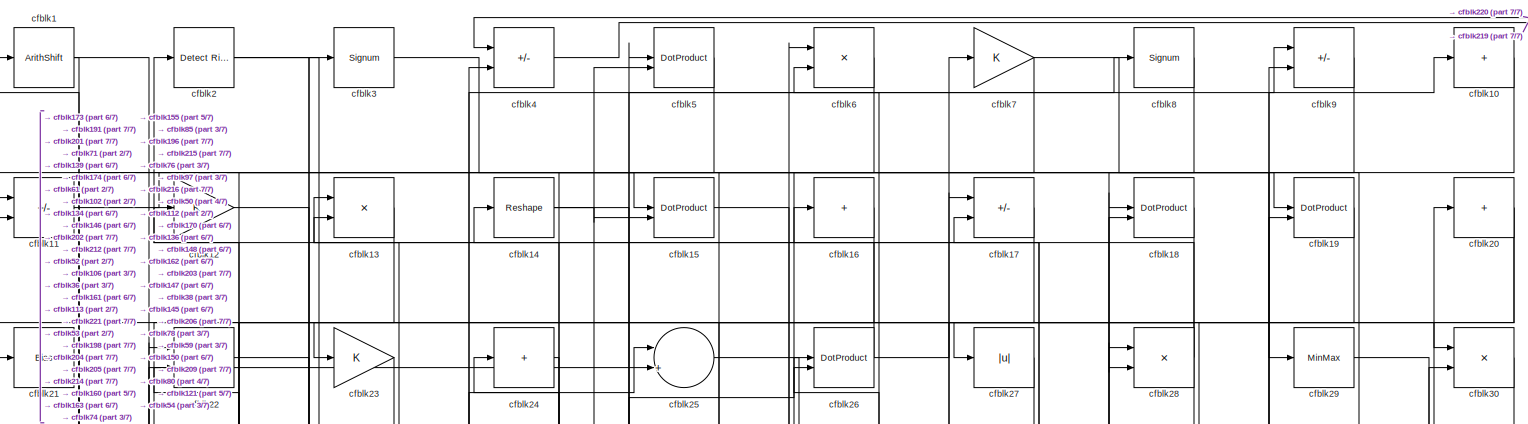
[diagram: root canvas - part 1/7, full width, top band]
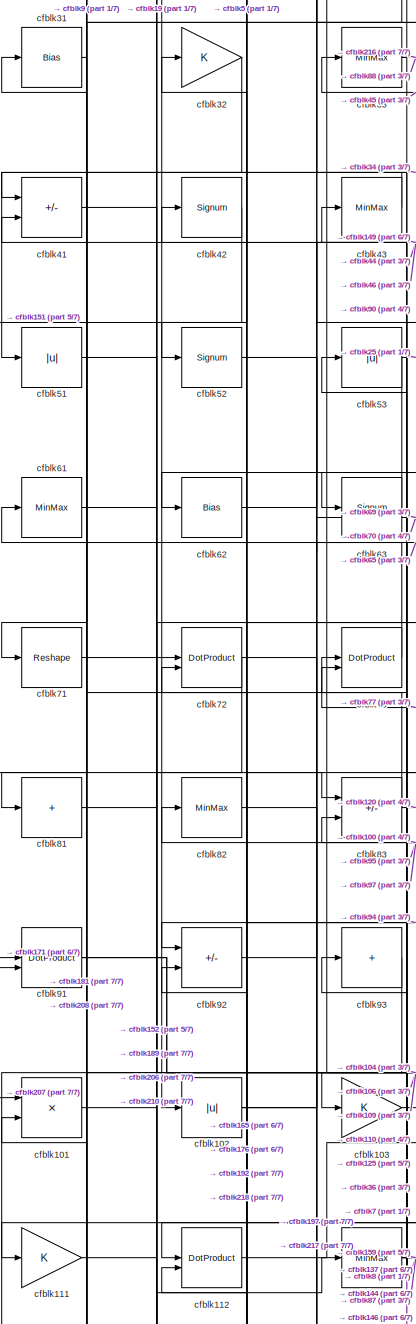
[diagram: root canvas - part 2/7, top left region]
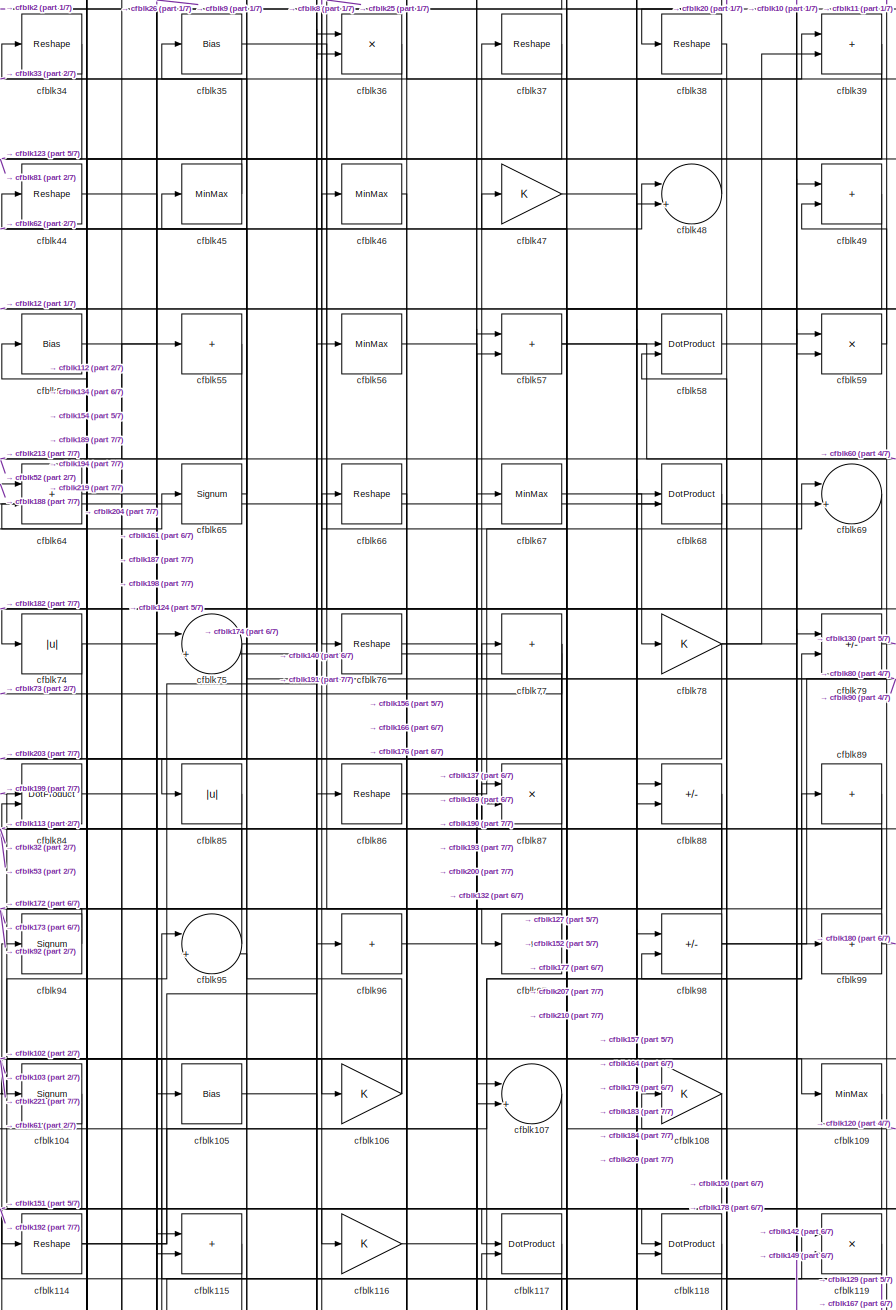
[diagram: root canvas - part 3/7, top center region]
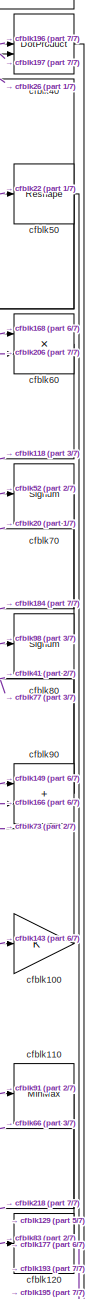
[diagram: root canvas - part 4/7, top right region]
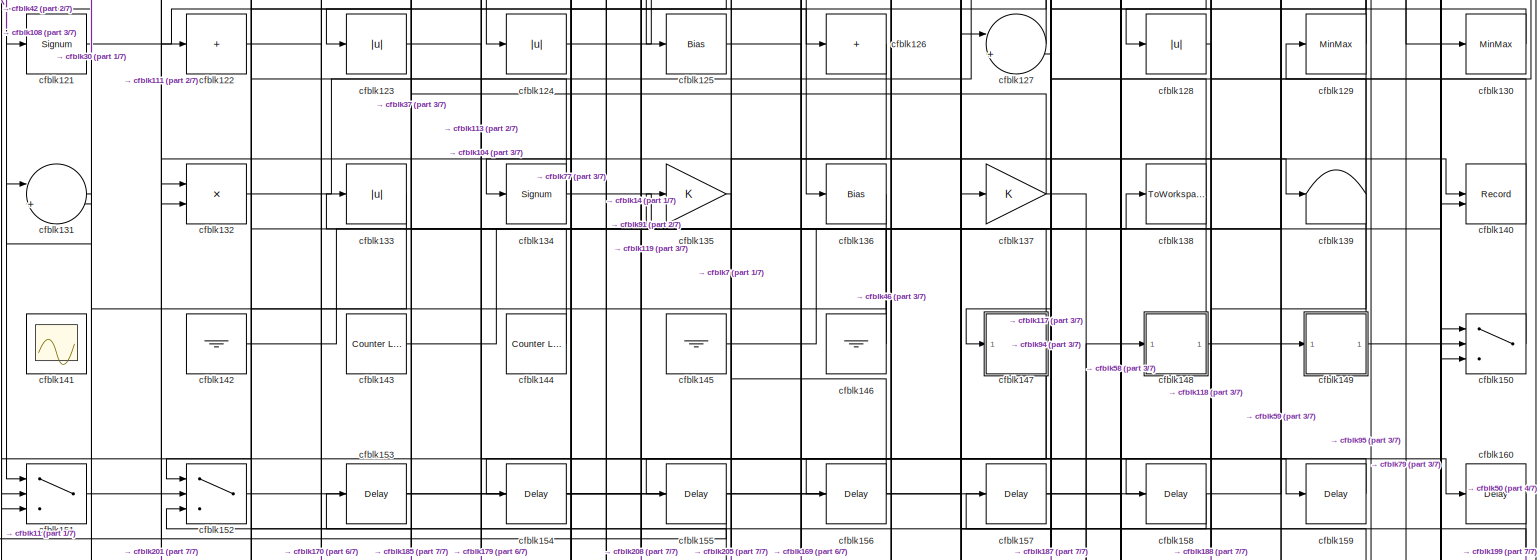
[diagram: root canvas - part 5/7, full width, middle band]
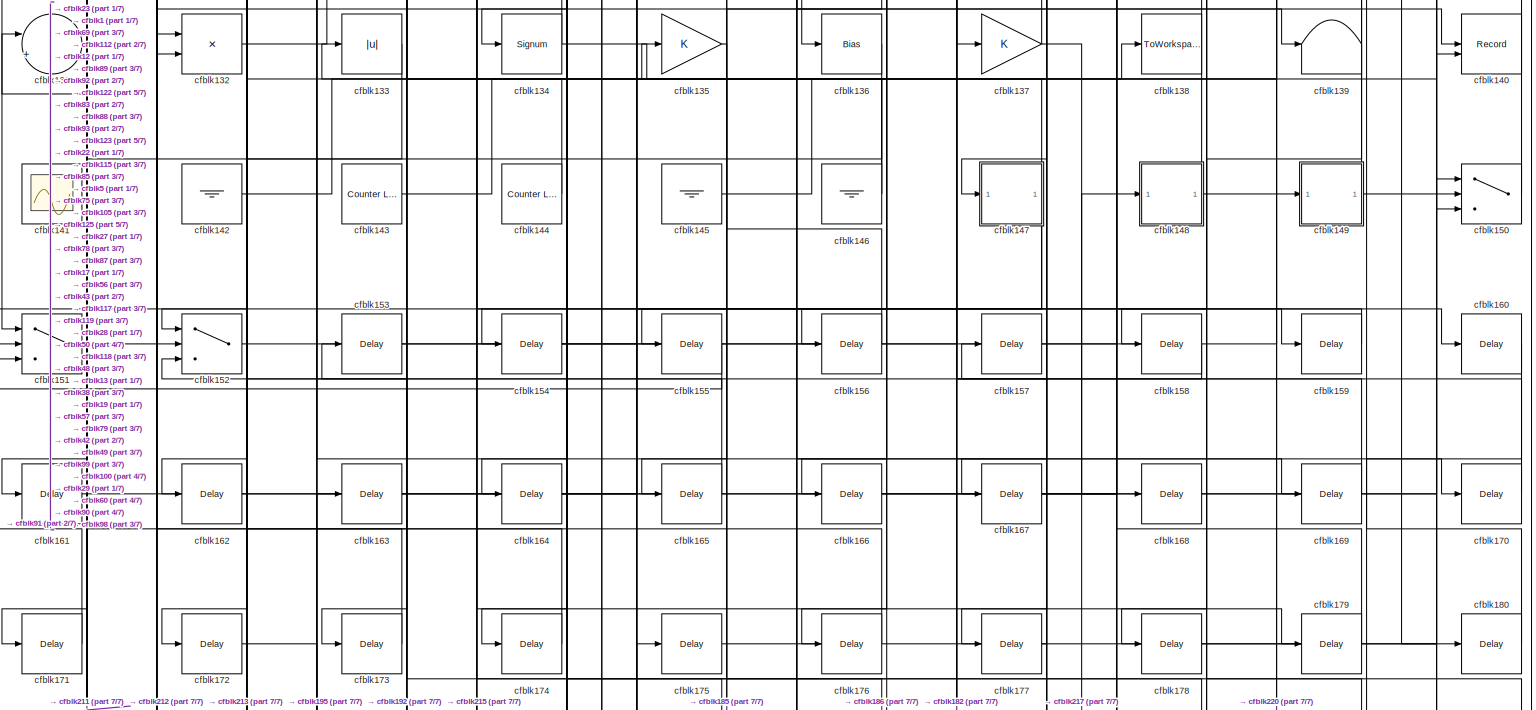
[diagram: root canvas - part 6/7, full width, bottom band]
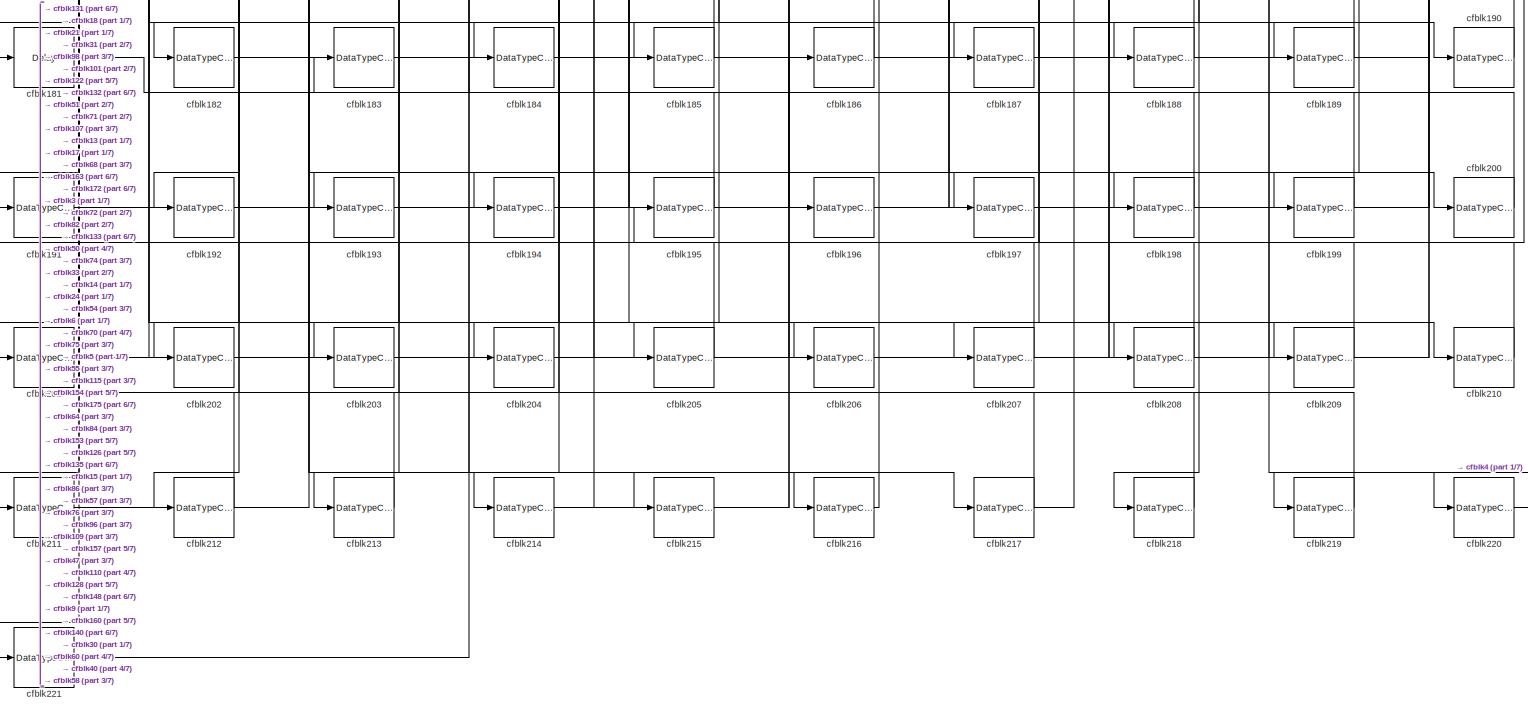
[diagram: root canvas - part 7/7, full width, bottom band]
MODEL slx_adb3fa89d6e9
KIND model
CONFIG AbsTol = auto
CONFIG EnableMultiTasking = off
CONFIG FixedStep = auto
CONFIG MaxStep = auto
CONFIG MinStep = auto
CONFIG RelTol = 1e-3
CONFIG SampleTimeConstraint = Unconstrained
CONFIG SolverName = VariableStepAuto
CONFIG StartTime = 0.0
CONFIG StopTime = 10.0
BLOCK [ArithShift] cfblk1
  BitShiftNumber = 8
  InputPortMap = u0
BLOCK [Sum] cfblk10
  IconShape = rectangular
  Inputs = +
BLOCK [Gain] cfblk100
BLOCK [Product] cfblk101
  Inputs = */
  RndMeth = Zero
  SaturateOnIntegerOverflow = on
BLOCK [Abs] cfblk102
  SaturateOnIntegerOverflow = off
BLOCK [Gain] cfblk103
BLOCK [Signum] cfblk104
BLOCK [Bias] cfblk105
  Bias = 0.0
  SaturateOnIntegerOverflow = off
BLOCK [Gain] cfblk106
BLOCK [Sum] cfblk107
  Inputs = |++
BLOCK [Gain] cfblk108
BLOCK [MinMax] cfblk109
BLOCK [Sum] cfblk11
  IconShape = rectangular
  Inputs = +-
BLOCK [MinMax] cfblk110
BLOCK [Gain] cfblk111
BLOCK [DotProduct] cfblk112
  OutDataTypeStr = Inherit: Inherit via internal rule
BLOCK [MinMax] cfblk113
BLOCK [Reshape] cfblk114
BLOCK [Sum] cfblk115
  IconShape = rectangular
BLOCK [Gain] cfblk116
BLOCK [DotProduct] cfblk117
  OutDataTypeStr = Inherit: Inherit via internal rule
BLOCK [DotProduct] cfblk118
  OutDataTypeStr = Inherit: Inherit via internal rule
BLOCK [Product] cfblk119
  Inputs = */
  RndMeth = Zero
  SaturateOnIntegerOverflow = on
BLOCK [Gain] cfblk12
BLOCK [Sum] cfblk120
  IconShape = rectangular
  Inputs = +
BLOCK [Signum] cfblk121
BLOCK [Sum] cfblk122
  IconShape = rectangular
  Inputs = +
BLOCK [Abs] cfblk123
  SaturateOnIntegerOverflow = off
BLOCK [Abs] cfblk124
  SaturateOnIntegerOverflow = off
BLOCK [Bias] cfblk125
  Bias = 0.0
  SaturateOnIntegerOverflow = off
BLOCK [Sum] cfblk126
  IconShape = rectangular
  Inputs = +
BLOCK [Sum] cfblk127
  Inputs = |++
BLOCK [Abs] cfblk128
  SaturateOnIntegerOverflow = off
BLOCK [MinMax] cfblk129
BLOCK [Product] cfblk13
  Inputs = */
  RndMeth = Zero
  SaturateOnIntegerOverflow = on
BLOCK [MinMax] cfblk130
BLOCK [Sum] cfblk131
  Inputs = |++
BLOCK [Product] cfblk132
  Inputs = */
  RndMeth = Zero
  SaturateOnIntegerOverflow = on
BLOCK [Abs] cfblk133
  SaturateOnIntegerOverflow = off
BLOCK [Signum] cfblk134
BLOCK [Gain] cfblk135
BLOCK [Bias] cfblk136
  Bias = 0.0
  SaturateOnIntegerOverflow = off
BLOCK [Gain] cfblk137
BLOCK [ToWorkspace] cfblk138
  MaxDataPoints = inf
  SampleTime = -1
  SaveFormat = Timeseries
  VariableName = simout
BLOCK [Terminator] cfblk139
BLOCK [Reshape] cfblk14
BLOCK [Record] cfblk140
  CompatibilityTag = XY
  FileSettingsInternal = {"entries":[{"content":{"excelSettings":{"content":{},"type":"Streamout.ExcelSettings"}},"type":"Streamout.FileSettingStorage","uuid":""}],"packageUris":["http:\/\/schema.mathworks.com\/mf0\/streamout_blocks\/R2020a"],"version":"1.0"}
  Layout = [1 1]
  SignalsInternal = {"entries":[{"content":{"signals":[{"content":{"blockPath":[],"dimensions":[1],"domain":"","lineColor":"#a2142f","plots":[1],"port":1,"signalID":573,"signalName":"XY Graph:1"},"type":"RecordBlkView.Signal","uuid":""},{"content":{"blockPath":[],"dimensions":[1],"domain":"","lineColor":"#139fff","plots":[1],"port":2,"signalID":576,"signalName":"XY Graph:2"},"type":"RecordBlkView.Signal","uuid":""}]}...<+144ch>
  VisualizationBindings = {"xyplotplugin":{"info":[{"series":[{"bindingParametersList":[{"parameter":"X-Axis","signalID":573,"signalName":"XY Graph:1"},{"parameter":"Y-Axis","signalID":576,"signalName":"XY Graph:2"}],"seriesID":1150}],"subplotID":1}]}}
  st = -1
BLOCK [Scope] cfblk141
  Floating = on
  NumInputPorts = 1
  ScopeSpecificationString = Simulink.scopes.TimeScopeBlockCfg('CurrentConfiguration', extmgr.ConfigurationSet(extmgr.Configuration('Core','General UI',true,'FigureColor',[0.156862745098039 0.156862745098039 0.156862745098039]),extmgr.Configuration('Core','Source UI',true),extmgr.Configuration('Sources','WiredSimulink',true,'DataLoggingVariableName','ScopeData1','DataLoggingSaveFormat','StructureWithTime','DataLoggingLimitDat...<+2713ch>
BLOCK [Ground] cfblk142
BLOCK [Reference] cfblk143  REF=hdlsllib/Sources/Counter
Limited
  SourceBlock = hdlsllib/Sources/Counter\nLimited
  SourceType = Counter Limited
BLOCK [Reference] cfblk144  REF=hdlsllib/Sources/Counter
Limited
  SourceBlock = hdlsllib/Sources/Counter\nLimited
  SourceType = Counter Limited
BLOCK [Ground] cfblk145
BLOCK [Ground] cfblk146
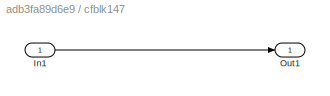
BLOCK [SubSystem] cfblk147
  LibrarySourceBlock = hdlsllib/Ports &\nSubsystems/Subsystem
BLOCK [Inport] cfblk147/In1
BLOCK [Outport] cfblk147/Out1
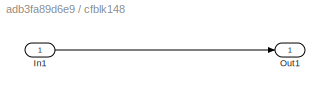
BLOCK [SubSystem] cfblk148
  LibrarySourceBlock = hdlsllib/Ports &\nSubsystems/Subsystem
BLOCK [Inport] cfblk148/In1
BLOCK [Outport] cfblk148/Out1
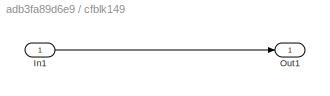
BLOCK [SubSystem] cfblk149
  LibrarySourceBlock = hdlsllib/Ports &\nSubsystems/Subsystem
BLOCK [Inport] cfblk149/In1
BLOCK [Outport] cfblk149/Out1
BLOCK [DotProduct] cfblk15
  OutDataTypeStr = Inherit: Inherit via internal rule
BLOCK [Switch] cfblk150
  InputSameDT = off
  SaturateOnIntegerOverflow = off
BLOCK [Switch] cfblk151
  InputSameDT = off
  SaturateOnIntegerOverflow = off
BLOCK [Switch] cfblk152
  InputSameDT = off
  SaturateOnIntegerOverflow = off
BLOCK [Delay] cfblk153
  InputPortMap = u0
  SampleTime = 1
BLOCK [Delay] cfblk154
  InputPortMap = u0
  SampleTime = 1
BLOCK [Delay] cfblk155
  InputPortMap = u0
  SampleTime = 1
BLOCK [Delay] cfblk156
  InputPortMap = u0
  SampleTime = 1
BLOCK [Delay] cfblk157
  InputPortMap = u0
  SampleTime = 1
BLOCK [Delay] cfblk158
  InputPortMap = u0
  SampleTime = 1
BLOCK [Delay] cfblk159
  InputPortMap = u0
  SampleTime = 1
BLOCK [Sum] cfblk16
  IconShape = rectangular
  Inputs = +
BLOCK [Delay] cfblk160
  InputPortMap = u0
  SampleTime = 1
BLOCK [Delay] cfblk161
  InputPortMap = u0
  SampleTime = 1
BLOCK [Delay] cfblk162
  InputPortMap = u0
  SampleTime = 1
BLOCK [Delay] cfblk163
  InputPortMap = u0
  SampleTime = 1
BLOCK [Delay] cfblk164
  InputPortMap = u0
  SampleTime = 1
BLOCK [Delay] cfblk165
  InputPortMap = u0
  SampleTime = 1
BLOCK [Delay] cfblk166
  InputPortMap = u0
  SampleTime = 1
BLOCK [Delay] cfblk167
  InputPortMap = u0
  SampleTime = 1
BLOCK [Delay] cfblk168
  InputPortMap = u0
  SampleTime = 1
BLOCK [Delay] cfblk169
  InputPortMap = u0
  SampleTime = 1
BLOCK [Sum] cfblk17
  IconShape = rectangular
  Inputs = +-
BLOCK [Delay] cfblk170
  InputPortMap = u0
  SampleTime = 1
BLOCK [Delay] cfblk171
  InputPortMap = u0
  SampleTime = 1
BLOCK [Delay] cfblk172
  InputPortMap = u0
  SampleTime = 1
BLOCK [Delay] cfblk173
  InputPortMap = u0
  SampleTime = 1
BLOCK [Delay] cfblk174
  InputPortMap = u0
  SampleTime = 1
BLOCK [Delay] cfblk175
  InputPortMap = u0
  SampleTime = 1
BLOCK [Delay] cfblk176
  InputPortMap = u0
  SampleTime = 1
BLOCK [Delay] cfblk177
  InputPortMap = u0
  SampleTime = 1
BLOCK [Delay] cfblk178
  InputPortMap = u0
  SampleTime = 1
BLOCK [Delay] cfblk179
  InputPortMap = u0
  SampleTime = 1
BLOCK [DotProduct] cfblk18
  OutDataTypeStr = Inherit: Inherit via internal rule
BLOCK [Delay] cfblk180
  InputPortMap = u0
  SampleTime = 1
BLOCK [Delay] cfblk181
  InputPortMap = u0
  SampleTime = 1
BLOCK [DataTypeConversion] cfblk182
  RndMeth = Floor
  SaturateOnIntegerOverflow = off
BLOCK [DataTypeConversion] cfblk183
  OutDataTypeStr = uint8
  RndMeth = Floor
  SaturateOnIntegerOverflow = off
BLOCK [DataTypeConversion] cfblk184
  OutDataTypeStr = uint8
  RndMeth = Floor
  SaturateOnIntegerOverflow = off
BLOCK [DataTypeConversion] cfblk185
  OutDataTypeStr = uint8
  RndMeth = Floor
  SaturateOnIntegerOverflow = off
BLOCK [DataTypeConversion] cfblk186
  OutDataTypeStr = uint8
  RndMeth = Floor
  SaturateOnIntegerOverflow = off
BLOCK [DataTypeConversion] cfblk187
  OutDataTypeStr = uint8
  RndMeth = Floor
  SaturateOnIntegerOverflow = off
BLOCK [DataTypeConversion] cfblk188
  OutDataTypeStr = uint8
  RndMeth = Floor
  SaturateOnIntegerOverflow = off
BLOCK [DataTypeConversion] cfblk189
  OutDataTypeStr = uint8
  RndMeth = Floor
  SaturateOnIntegerOverflow = off
BLOCK [DotProduct] cfblk19
  OutDataTypeStr = Inherit: Inherit via internal rule
BLOCK [DataTypeConversion] cfblk190
  OutDataTypeStr = uint8
  RndMeth = Floor
  SaturateOnIntegerOverflow = off
BLOCK [DataTypeConversion] cfblk191
  OutDataTypeStr = uint8
  RndMeth = Floor
  SaturateOnIntegerOverflow = off
BLOCK [DataTypeConversion] cfblk192
  RndMeth = Floor
  SaturateOnIntegerOverflow = off
BLOCK [DataTypeConversion] cfblk193
  OutDataTypeStr = uint8
  RndMeth = Floor
  SaturateOnIntegerOverflow = off
BLOCK [DataTypeConversion] cfblk194
  OutDataTypeStr = uint8
  RndMeth = Floor
  SaturateOnIntegerOverflow = off
BLOCK [DataTypeConversion] cfblk195
  OutDataTypeStr = uint8
  RndMeth = Floor
  SaturateOnIntegerOverflow = off
BLOCK [DataTypeConversion] cfblk196
  OutDataTypeStr = uint8
  RndMeth = Floor
  SaturateOnIntegerOverflow = off
BLOCK [DataTypeConversion] cfblk197
  OutDataTypeStr = uint8
  RndMeth = Floor
  SaturateOnIntegerOverflow = off
BLOCK [DataTypeConversion] cfblk198
  OutDataTypeStr = uint8
  RndMeth = Floor
  SaturateOnIntegerOverflow = off
BLOCK [DataTypeConversion] cfblk199
  OutDataTypeStr = uint8
  RndMeth = Floor
  SaturateOnIntegerOverflow = off
BLOCK [Reference] cfblk2  REF=hdlsllib/Logic and Bit
Operations/Detect Rise
Nonnegative
  SourceBlock = hdlsllib/Logic and Bit\nOperations/Detect Rise\nNonnegative
  SourceType = Detect Rise Nonnegative
BLOCK [Sum] cfblk20
  IconShape = rectangular
  Inputs = +
BLOCK [DataTypeConversion] cfblk200
  OutDataTypeStr = uint8
  RndMeth = Floor
  SaturateOnIntegerOverflow = off
BLOCK [DataTypeConversion] cfblk201
  RndMeth = Floor
  SaturateOnIntegerOverflow = off
BLOCK [DataTypeConversion] cfblk202
  OutDataTypeStr = uint8
  RndMeth = Floor
  SaturateOnIntegerOverflow = off
BLOCK [DataTypeConversion] cfblk203
  OutDataTypeStr = uint8
  RndMeth = Floor
  SaturateOnIntegerOverflow = off
BLOCK [DataTypeConversion] cfblk204
  RndMeth = Floor
  SaturateOnIntegerOverflow = off
BLOCK [DataTypeConversion] cfblk205
  OutDataTypeStr = uint8
  RndMeth = Floor
  SaturateOnIntegerOverflow = off
BLOCK [DataTypeConversion] cfblk206
  RndMeth = Floor
  SaturateOnIntegerOverflow = off
BLOCK [DataTypeConversion] cfblk207
  OutDataTypeStr = uint8
  RndMeth = Floor
  SaturateOnIntegerOverflow = off
BLOCK [DataTypeConversion] cfblk208
  OutDataTypeStr = uint8
  RndMeth = Floor
  SaturateOnIntegerOverflow = off
BLOCK [DataTypeConversion] cfblk209
  RndMeth = Floor
  SaturateOnIntegerOverflow = off
BLOCK [Bias] cfblk21
  Bias = 0.0
  SaturateOnIntegerOverflow = off
BLOCK [DataTypeConversion] cfblk210
  OutDataTypeStr = uint8
  RndMeth = Floor
  SaturateOnIntegerOverflow = off
BLOCK [DataTypeConversion] cfblk211
  OutDataTypeStr = uint8
  RndMeth = Floor
  SaturateOnIntegerOverflow = off
BLOCK [DataTypeConversion] cfblk212
  OutDataTypeStr = uint8
  RndMeth = Floor
  SaturateOnIntegerOverflow = off
BLOCK [DataTypeConversion] cfblk213
  OutDataTypeStr = uint8
  RndMeth = Floor
  SaturateOnIntegerOverflow = off
BLOCK [DataTypeConversion] cfblk214
  RndMeth = Floor
  SaturateOnIntegerOverflow = off
BLOCK [DataTypeConversion] cfblk215
  OutDataTypeStr = uint8
  RndMeth = Floor
  SaturateOnIntegerOverflow = off
BLOCK [DataTypeConversion] cfblk216
  OutDataTypeStr = uint8
  RndMeth = Floor
  SaturateOnIntegerOverflow = off
BLOCK [DataTypeConversion] cfblk217
  RndMeth = Floor
  SaturateOnIntegerOverflow = off
BLOCK [DataTypeConversion] cfblk218
  OutDataTypeStr = uint8
  RndMeth = Floor
  SaturateOnIntegerOverflow = off
BLOCK [DataTypeConversion] cfblk219
  OutDataTypeStr = uint8
  RndMeth = Floor
  SaturateOnIntegerOverflow = off
BLOCK [Product] cfblk22
  Inputs = */
  RndMeth = Zero
  SaturateOnIntegerOverflow = on
BLOCK [DataTypeConversion] cfblk220
  OutDataTypeStr = uint8
  RndMeth = Floor
  SaturateOnIntegerOverflow = off
BLOCK [DataTypeConversion] cfblk221
  OutDataTypeStr = uint8
  RndMeth = Floor
  SaturateOnIntegerOverflow = off
BLOCK [Gain] cfblk23
BLOCK [Sum] cfblk24
  IconShape = rectangular
  Inputs = +
BLOCK [Sum] cfblk25
  Inputs = |++
BLOCK [DotProduct] cfblk26
  OutDataTypeStr = Inherit: Inherit via internal rule
BLOCK [Abs] cfblk27
  SaturateOnIntegerOverflow = off
BLOCK [Product] cfblk28
  Inputs = */
  RndMeth = Zero
  SaturateOnIntegerOverflow = on
BLOCK [MinMax] cfblk29
BLOCK [Signum] cfblk3
BLOCK [Product] cfblk30
  Inputs = */
  RndMeth = Zero
  SaturateOnIntegerOverflow = on
BLOCK [Bias] cfblk31
  Bias = 0.0
  SaturateOnIntegerOverflow = off
BLOCK [Gain] cfblk32
BLOCK [MinMax] cfblk33
BLOCK [Reshape] cfblk34
BLOCK [Bias] cfblk35
  Bias = 0.0
  SaturateOnIntegerOverflow = off
BLOCK [Product] cfblk36
  Inputs = */
  RndMeth = Zero
  SaturateOnIntegerOverflow = on
BLOCK [Reshape] cfblk37
BLOCK [Reshape] cfblk38
BLOCK [Sum] cfblk39
  IconShape = rectangular
BLOCK [Sum] cfblk4
  IconShape = rectangular
  Inputs = +-
BLOCK [DotProduct] cfblk40
  OutDataTypeStr = Inherit: Inherit via internal rule
BLOCK [Sum] cfblk41
  IconShape = rectangular
  Inputs = +-
BLOCK [Signum] cfblk42
BLOCK [MinMax] cfblk43
BLOCK [Reshape] cfblk44
BLOCK [MinMax] cfblk45
BLOCK [MinMax] cfblk46
BLOCK [Gain] cfblk47
BLOCK [Sum] cfblk48
  Inputs = |++
BLOCK [Sum] cfblk49
  IconShape = rectangular
BLOCK [DotProduct] cfblk5
  OutDataTypeStr = Inherit: Inherit via internal rule
BLOCK [Reshape] cfblk50
BLOCK [Abs] cfblk51
  SaturateOnIntegerOverflow = off
BLOCK [Signum] cfblk52
BLOCK [Abs] cfblk53
  SaturateOnIntegerOverflow = off
BLOCK [Bias] cfblk54
  Bias = 0.0
  SaturateOnIntegerOverflow = off
BLOCK [Sum] cfblk55
  IconShape = rectangular
  Inputs = +
BLOCK [MinMax] cfblk56
BLOCK [Sum] cfblk57
  IconShape = rectangular
BLOCK [DotProduct] cfblk58
  OutDataTypeStr = Inherit: Inherit via internal rule
BLOCK [Product] cfblk59
  Inputs = */
  RndMeth = Zero
  SaturateOnIntegerOverflow = on
BLOCK [Product] cfblk6
  Inputs = */
  RndMeth = Zero
  SaturateOnIntegerOverflow = on
BLOCK [Product] cfblk60
  Inputs = */
  RndMeth = Zero
  SaturateOnIntegerOverflow = on
BLOCK [MinMax] cfblk61
BLOCK [Bias] cfblk62
  Bias = 0.0
  SaturateOnIntegerOverflow = off
BLOCK [Signum] cfblk63
BLOCK [Sum] cfblk64
  IconShape = rectangular
BLOCK [Signum] cfblk65
BLOCK [Reshape] cfblk66
BLOCK [MinMax] cfblk67
BLOCK [DotProduct] cfblk68
  OutDataTypeStr = Inherit: Inherit via internal rule
BLOCK [Sum] cfblk69
  Inputs = |++
BLOCK [Gain] cfblk7
BLOCK [Signum] cfblk70
BLOCK [Reshape] cfblk71
BLOCK [DotProduct] cfblk72
  OutDataTypeStr = Inherit: Inherit via internal rule
BLOCK [DotProduct] cfblk73
  OutDataTypeStr = Inherit: Inherit via internal rule
BLOCK [Abs] cfblk74
  SaturateOnIntegerOverflow = off
BLOCK [Sum] cfblk75
  Inputs = |++
BLOCK [Reshape] cfblk76
BLOCK [Sum] cfblk77
  IconShape = rectangular
  Inputs = +
BLOCK [Gain] cfblk78
BLOCK [Sum] cfblk79
  IconShape = rectangular
  Inputs = +-
BLOCK [Signum] cfblk8
BLOCK [Signum] cfblk80
BLOCK [Sum] cfblk81
  IconShape = rectangular
  Inputs = +
BLOCK [MinMax] cfblk82
BLOCK [Sum] cfblk83
  IconShape = rectangular
  Inputs = +-
BLOCK [DotProduct] cfblk84
  OutDataTypeStr = Inherit: Inherit via internal rule
BLOCK [Abs] cfblk85
  SaturateOnIntegerOverflow = off
BLOCK [Reshape] cfblk86
BLOCK [Product] cfblk87
  Inputs = */
  RndMeth = Zero
  SaturateOnIntegerOverflow = on
BLOCK [Sum] cfblk88
  IconShape = rectangular
  Inputs = +-
BLOCK [Sum] cfblk89
  IconShape = rectangular
  Inputs = +
BLOCK [Sum] cfblk9
  IconShape = rectangular
  Inputs = +-
BLOCK [Sum] cfblk90
  IconShape = rectangular
BLOCK [DotProduct] cfblk91
  OutDataTypeStr = Inherit: Inherit via internal rule
BLOCK [Sum] cfblk92
  IconShape = rectangular
  Inputs = +-
BLOCK [Sum] cfblk93
  IconShape = rectangular
  Inputs = +
BLOCK [Signum] cfblk94
BLOCK [Sum] cfblk95
  Inputs = |++
BLOCK [Sum] cfblk96
  IconShape = rectangular
  Inputs = +
BLOCK [Sum] cfblk97
  IconShape = rectangular
  Inputs = +
BLOCK [Sum] cfblk98
  IconShape = rectangular
  Inputs = +-
BLOCK [Sum] cfblk99
  IconShape = rectangular
  Inputs = +
LINE cfblk100:1 -> cfblk73:1
LINE cfblk101:1 -> cfblk206:1
NET cfblk102:1 -> cfblk109:1, cfblk44:1
LINE cfblk103:1 -> cfblk36:1
LINE cfblk104:1 -> cfblk124:1
LINE cfblk105:1 -> cfblk140:1
NET cfblk106:1 -> cfblk103:1, cfblk35:1
LINE cfblk107:1 -> cfblk192:1
LINE cfblk108:1 -> cfblk151:1
LINE cfblk109:1 -> cfblk207:1
LINE cfblk10:1 -> cfblk28:2
LINE cfblk110:1 -> cfblk218:1
LINE cfblk111:1 -> cfblk152:2
LINE cfblk112:1 -> cfblk7:1
NET cfblk113:1 -> cfblk159:1, cfblk87:2, cfblk8:1
NET cfblk114:1 -> cfblk56:1, cfblk89:1
LINE cfblk115:1 -> cfblk174:1
LINE cfblk116:1 -> cfblk67:1
LINE cfblk117:1 -> cfblk152:1
LINE cfblk118:1 -> cfblk127:2
LINE cfblk119:1 -> cfblk167:1
LINE cfblk11:1 -> cfblk19:1
LINE cfblk120:1 -> cfblk66:1
LINE cfblk121:1 -> cfblk126:1
LINE cfblk122:1 -> cfblk170:1
LINE cfblk123:1 -> cfblk179:1
LINE cfblk124:1 -> cfblk119:1
LINE cfblk125:1 -> cfblk169:1
LINE cfblk126:1 -> cfblk205:1
LINE cfblk127:1 -> cfblk94:1
LINE cfblk128:1 -> cfblk188:1
NET cfblk129:1 -> cfblk108:1, cfblk158:1, cfblk95:1
LINE cfblk12:1 -> cfblk59:2
LINE cfblk130:1 -> cfblk128:1
LINE cfblk131:1 -> cfblk211:1
LINE cfblk132:1 -> cfblk79:2
LINE cfblk133:1 -> cfblk171:1
NET cfblk134:1 -> cfblk138:1, cfblk22:2
LINE cfblk135:1 -> cfblk185:1
LINE cfblk136:1 -> cfblk162:1
NET cfblk137:1 -> cfblk168:1, cfblk43:1
LINE cfblk13:1 -> cfblk212:1
LINE cfblk142:1 -> cfblk79:1
LINE cfblk143:1 -> cfblk100:1
LINE cfblk144:1 -> cfblk93:1
LINE cfblk145:1 -> cfblk19:2
NET cfblk146:1 -> cfblk12:1, cfblk83:2
LINE cfblk147/In1:1 -> cfblk147/Out1:1
NET cfblk147:1 -> cfblk13:2, cfblk164:1, cfblk165:1
LINE cfblk148/In1:1 -> cfblk148/Out1:1
NET cfblk148:1 -> cfblk13:1, cfblk220:1
LINE cfblk149/In1:1 -> cfblk149/Out1:1
NET cfblk149:1 -> cfblk42:1, cfblk90:1
NET cfblk14:1 -> cfblk15:2, cfblk160:1
LINE cfblk150:1 -> cfblk98:2
LINE cfblk151:1 -> cfblk113:1
LINE cfblk152:1 -> cfblk59:1
LINE cfblk153:1 -> cfblk127:1
LINE cfblk154:1 -> cfblk208:1
LINE cfblk155:1 -> cfblk11:2
LINE cfblk156:1 -> cfblk95:2
LINE cfblk157:1 -> cfblk58:1
LINE cfblk158:1 -> cfblk152:3
LINE cfblk159:1 -> cfblk151:2
LINE cfblk15:1 -> cfblk196:1
LINE cfblk160:1 -> cfblk199:1
LINE cfblk161:1 -> cfblk75:1
LINE cfblk162:1 -> cfblk28:1
LINE cfblk163:1 -> cfblk5:1
LINE cfblk164:1 -> cfblk48:2
LINE cfblk165:1 -> cfblk92:2
LINE cfblk166:1 -> cfblk90:2
LINE cfblk167:1 -> cfblk118:2
LINE cfblk168:1 -> cfblk60:1
LINE cfblk169:1 -> cfblk57:1
LINE cfblk16:1 -> cfblk23:1
LINE cfblk170:1 -> cfblk17:1
LINE cfblk171:1 -> cfblk91:1
LINE cfblk172:1 -> cfblk215:1
LINE cfblk173:1 -> cfblk1:1
LINE cfblk174:1 -> cfblk22:1
LINE cfblk175:1 -> cfblk150:2
LINE cfblk176:1 -> cfblk112:2
LINE cfblk177:1 -> cfblk117:2
LINE cfblk178:1 -> cfblk150:1
LINE cfblk179:1 -> cfblk98:1
LINE cfblk17:1 -> cfblk202:1
LINE cfblk180:1 -> cfblk49:2
LINE cfblk181:1 -> cfblk183:1
NET cfblk182:1 -> cfblk140:2, cfblk57:2
LINE cfblk183:1 -> cfblk68:1
LINE cfblk184:1 -> cfblk68:2
LINE cfblk185:1 -> cfblk153:1
LINE cfblk186:1 -> cfblk135:1
LINE cfblk187:1 -> cfblk157:1
LINE cfblk188:1 -> cfblk64:1
LINE cfblk189:1 -> cfblk64:2
LINE cfblk18:1 -> cfblk201:1
LINE cfblk190:1 -> cfblk58:2
LINE cfblk191:1 -> cfblk96:1
NET cfblk192:1 -> cfblk115:1, cfblk175:1, cfblk72:2
LINE cfblk193:1 -> cfblk107:1
LINE cfblk194:1 -> cfblk107:2
LINE cfblk195:1 -> cfblk132:1
LINE cfblk196:1 -> cfblk40:1
LINE cfblk197:1 -> cfblk40:2
LINE cfblk198:1 -> cfblk14:1
LINE cfblk199:1 -> cfblk84:1
LINE cfblk19:1 -> cfblk102:1
NET cfblk1:1 -> cfblk139:1, cfblk21:1
LINE cfblk200:1 -> cfblk84:2
NET cfblk201:1 -> cfblk122:1, cfblk3:1
LINE cfblk202:1 -> cfblk18:1
LINE cfblk203:1 -> cfblk18:2
NET cfblk204:1 -> cfblk55:1, cfblk86:1
LINE cfblk205:1 -> cfblk24:1
NET cfblk206:1 -> cfblk60:2, cfblk9:2
LINE cfblk207:1 -> cfblk101:1
LINE cfblk208:1 -> cfblk101:2
NET cfblk209:1 -> cfblk17:2, cfblk30:2
NET cfblk20:1 -> cfblk38:1, cfblk85:1
LINE cfblk210:1 -> cfblk47:1
LINE cfblk211:1 -> cfblk163:1
LINE cfblk212:1 -> cfblk131:1
LINE cfblk213:1 -> cfblk131:2
NET cfblk214:1 -> cfblk186:1, cfblk5:2
LINE cfblk215:1 -> cfblk6:1
LINE cfblk216:1 -> cfblk6:2
NET cfblk217:1 -> cfblk133:1, cfblk148:1
LINE cfblk218:1 -> cfblk82:1
LINE cfblk219:1 -> cfblk54:1
LINE cfblk21:1 -> cfblk191:1
LINE cfblk220:1 -> cfblk4:1
LINE cfblk221:1 -> cfblk4:2
LINE cfblk22:1 -> cfblk50:1
LINE cfblk23:1 -> cfblk161:1
LINE cfblk24:1 -> cfblk204:1
LINE cfblk25:1 -> cfblk97:1
NET cfblk26:1 -> cfblk2:1, cfblk30:1
LINE cfblk27:1 -> cfblk136:1
NET cfblk28:1 -> cfblk147:1, cfblk16:1, cfblk27:1
LINE cfblk29:1 -> cfblk150:3
NET cfblk2:1 -> cfblk106:1, cfblk36:2
LINE cfblk30:1 -> cfblk121:1
LINE cfblk31:1 -> cfblk181:1
LINE cfblk32:1 -> cfblk51:1
NET cfblk33:1 -> cfblk216:1, cfblk88:2
LINE cfblk34:1 -> cfblk81:1
LINE cfblk35:1 -> cfblk88:1
LINE cfblk36:1 -> cfblk114:1
LINE cfblk37:1 -> cfblk123:1
LINE cfblk38:1 -> cfblk178:1
NET cfblk39:1 -> cfblk119:2, cfblk74:1
LINE cfblk3:1 -> cfblk15:1
LINE cfblk40:1 -> cfblk195:1
LINE cfblk41:1 -> cfblk72:1
LINE cfblk42:1 -> cfblk151:3
LINE cfblk43:1 -> cfblk41:1
LINE cfblk44:1 -> cfblk105:1
LINE cfblk45:1 -> cfblk33:1
LINE cfblk46:1 -> cfblk156:1
LINE cfblk47:1 -> cfblk209:1
LINE cfblk48:1 -> cfblk34:1
LINE cfblk49:1 -> cfblk117:1
LINE cfblk4:1 -> cfblk219:1
NET cfblk50:1 -> cfblk129:1, cfblk177:1, cfblk193:1, cfblk26:2
LINE cfblk51:1 -> cfblk189:1
NET cfblk52:1 -> cfblk69:2, cfblk70:1
NET cfblk53:1 -> cfblk25:1, cfblk63:1
LINE cfblk54:1 -> cfblk9:1
LINE cfblk55:1 -> cfblk213:1
LINE cfblk56:1 -> cfblk137:1
NET cfblk57:1 -> cfblk149:1, cfblk39:1
LINE cfblk58:1 -> cfblk49:1
LINE cfblk59:1 -> cfblk11:1
LINE cfblk5:1 -> cfblk52:1
LINE cfblk60:1 -> cfblk118:1
NET cfblk61:1 -> cfblk104:1, cfblk25:2
LINE cfblk62:1 -> cfblk46:1
LINE cfblk63:1 -> cfblk62:1
LINE cfblk64:1 -> cfblk187:1
LINE cfblk65:1 -> cfblk45:1
LINE cfblk66:1 -> cfblk116:1
LINE cfblk67:1 -> cfblk78:1
LINE cfblk68:1 -> cfblk182:1
LINE cfblk69:1 -> cfblk132:2
LINE cfblk6:1 -> cfblk214:1
LINE cfblk70:1 -> cfblk184:1
LINE cfblk71:1 -> cfblk210:1
NET cfblk72:1 -> cfblk197:1, cfblk91:2
LINE cfblk73:1 -> cfblk31:1
NET cfblk74:1 -> cfblk203:1, cfblk26:1
NET cfblk75:1 -> cfblk194:1, cfblk48:1
LINE cfblk76:1 -> cfblk200:1
NET cfblk77:1 -> cfblk112:1, cfblk154:1, cfblk73:2
NET cfblk78:1 -> cfblk10:1, cfblk166:1, cfblk39:2
LINE cfblk79:1 -> cfblk130:1
NET cfblk7:1 -> cfblk155:1, cfblk29:1
LINE cfblk80:1 -> cfblk20:1
LINE cfblk81:1 -> cfblk83:1
LINE cfblk82:1 -> cfblk217:1
NET cfblk83:1 -> cfblk120:1, cfblk61:1
LINE cfblk84:1 -> cfblk198:1
LINE cfblk85:1 -> cfblk134:1
LINE cfblk86:1 -> cfblk69:1
NET cfblk87:1 -> cfblk176:1, cfblk75:2
NET cfblk88:1 -> cfblk115:2, cfblk173:1
LINE cfblk89:1 -> cfblk172:1
LINE cfblk8:1 -> cfblk76:1
NET cfblk90:1 -> cfblk41:2, cfblk77:1
NET cfblk91:1 -> cfblk110:1, cfblk125:1
LINE cfblk92:1 -> cfblk65:1
LINE cfblk93:1 -> cfblk111:1
LINE cfblk94:1 -> cfblk92:1
LINE cfblk95:1 -> cfblk53:1
LINE cfblk96:1 -> cfblk190:1
LINE cfblk97:1 -> cfblk32:1
NET cfblk98:1 -> cfblk221:1, cfblk80:1, cfblk87:1, cfblk99:1
NET cfblk99:1 -> cfblk180:1, cfblk37:1
LINE cfblk9:1 -> cfblk71:1
note: NET lines group one-source signal fan-out (src -> all destinations, sorted); 1:1 wires keep LINE
